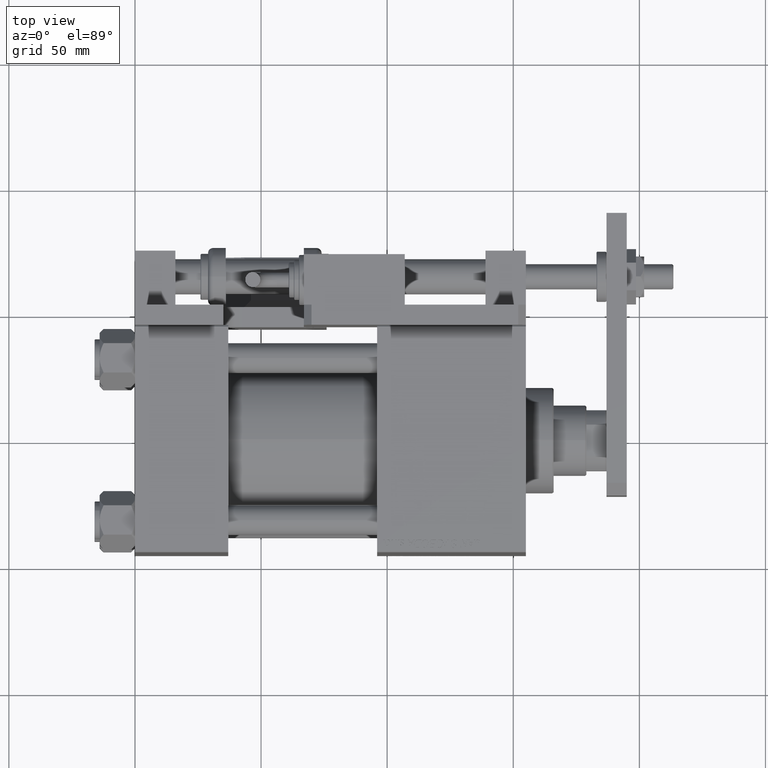
[diagram: clean part render]
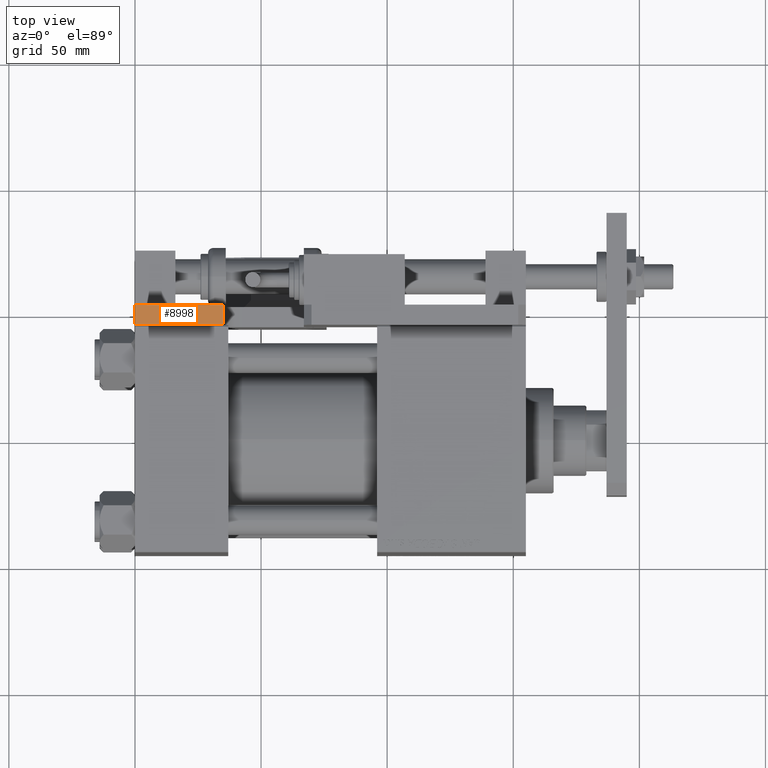
[diagram: same view with one face highlighted and labeled with its STEP entity id]
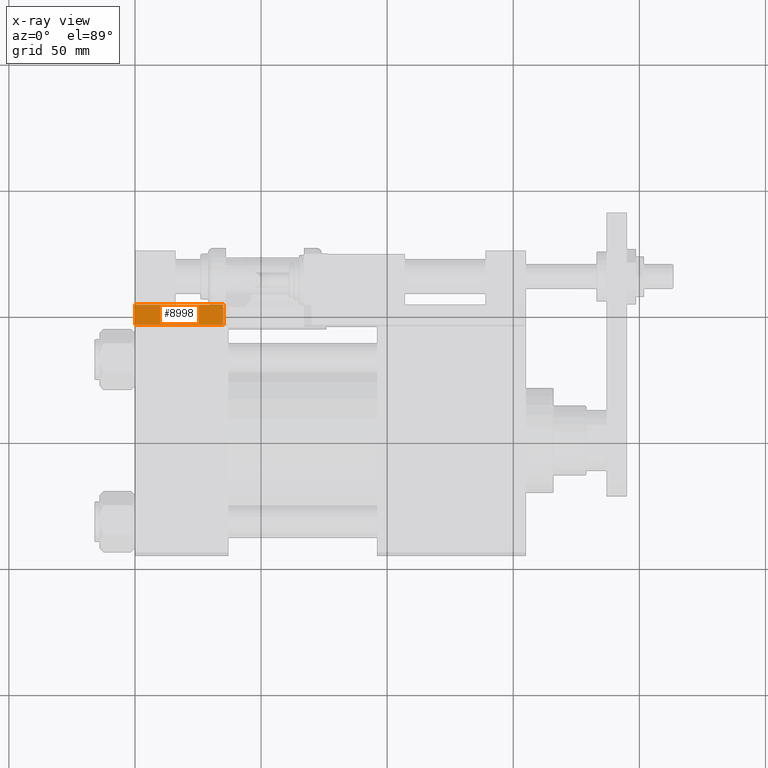
[diagram: x-ray of the same camera — body ghosted, the highlighted face saturated]
A machine part, top view. The second image highlights one B-rep face of the part: STEP entity #8998.
The next image is the same camera in x-ray: the body ghosted, the highlighted face saturated — about 0% of this face is hidden behind the body in this view.
In plain terms, the highlighted planar face has unit normal (-0, 0, -1).
Its self-contained STEP definition (entity closure, byte-faithful):
#252 = ORIENTED_EDGE ( 'NONE', *, *, #30466, .F. ) ;
#633 = VERTEX_POINT ( 'NONE', #37779 ) ;
#4314 = ORIENTED_EDGE ( 'NONE', *, *, #24452, .F. ) ;
#4991 = CARTESIAN_POINT ( 'NONE',  ( -34.99999999999999289, 114.9999999999999716, 0.000000000000000000 ) ) ;
#6000 = VERTEX_POINT ( 'NONE', #52274 ) ;
#6427 = CARTESIAN_POINT ( 'NONE',  ( 0.000000000000000000, 115.0000000000000142, 8.000000000000000000 ) ) ;
#7407 = VECTOR ( 'NONE', #19231, 1000.000000000000000 ) ;
#8143 = DIRECTION ( 'NONE',  ( -1.000000000000000000, -1.189524669241239460E-15, 0.000000000000000000 ) ) ;
#8998 = ADVANCED_FACE ( 'NONE', ( #44905 ), #37248, .F. ) ;
#10021 = DIRECTION ( 'NONE',  ( -1.000000000000000000, -1.189524669241239460E-15, 0.000000000000000000 ) ) ;
#10941 = DIRECTION ( 'NONE',  ( 1.189524669241239460E-15, -1.000000000000000000, 0.000000000000000000 ) ) ;
#11942 = VECTOR ( 'NONE', #10021, 1000.000000000000000 ) ;
#15626 = CARTESIAN_POINT ( 'NONE',  ( 0.000000000000000000, 115.0000000000000142, 0.000000000000000000 ) ) ;
#19231 = DIRECTION ( 'NONE',  ( -0.000000000000000000, -0.000000000000000000, -1.000000000000000000 ) ) ;
#19267 = DIRECTION ( 'NONE',  ( -0.000000000000000000, -0.000000000000000000, -1.000000000000000000 ) ) ;
#20299 = AXIS2_PLACEMENT_3D ( 'NONE', #6427, #10941, #23675 ) ;
#21196 = LINE ( 'NONE', #15626, #11942 ) ;
#23675 = DIRECTION ( 'NONE',  ( 1.000000000000000000, 1.189524669241239460E-15, 0.000000000000000000 ) ) ;
#24452 = EDGE_CURVE ( 'NONE', #6000, #49960, #50883, .T. ) ;
#26518 = CARTESIAN_POINT ( 'NONE',  ( -34.99999999999999289, 114.9999999999999716, 8.000000000000000000 ) ) ;
#26920 = EDGE_LOOP ( 'NONE', ( #49477, #252, #4314, #38421 ) ) ;
#30466 = EDGE_CURVE ( 'NONE', #49960, #42352, #46164, .T. ) ;
#32233 = CARTESIAN_POINT ( 'NONE',  ( 0.000000000000000000, 115.0000000000000142, 8.000000000000000000 ) ) ;
#33404 = CARTESIAN_POINT ( 'NONE',  ( -34.99999999999999289, 114.9999999999999716, 8.000000000000000000 ) ) ;
#36756 = LINE ( 'NONE', #32233, #7407 ) ;
#37248 = PLANE ( 'NONE',  #20299 ) ;
#37779 = CARTESIAN_POINT ( 'NONE',  ( 0.000000000000000000, 115.0000000000000142, 0.000000000000000000 ) ) ;
#38421 = ORIENTED_EDGE ( 'NONE', *, *, #40791, .T. ) ;
#40791 = EDGE_CURVE ( 'NONE', #6000, #633, #36756, .T. ) ;
#41965 = EDGE_CURVE ( 'NONE', #633, #42352, #21196, .T. ) ;
#42352 = VERTEX_POINT ( 'NONE', #4991 ) ;
#44314 = VECTOR ( 'NONE', #8143, 1000.000000000000000 ) ;
#44905 = FACE_OUTER_BOUND ( 'NONE', #26920, .T. ) ;
#46164 = LINE ( 'NONE', #33404, #53533 ) ;
#49477 = ORIENTED_EDGE ( 'NONE', *, *, #41965, .T. ) ;
#49960 = VERTEX_POINT ( 'NONE', #26518 ) ;
#50883 = LINE ( 'NONE', #55686, #44314 ) ;
#52274 = CARTESIAN_POINT ( 'NONE',  ( 0.000000000000000000, 115.0000000000000142, 8.000000000000000000 ) ) ;
#53533 = VECTOR ( 'NONE', #19267, 1000.000000000000000 ) ;
#55686 = CARTESIAN_POINT ( 'NONE',  ( 0.000000000000000000, 115.0000000000000142, 8.000000000000000000 ) ) ;